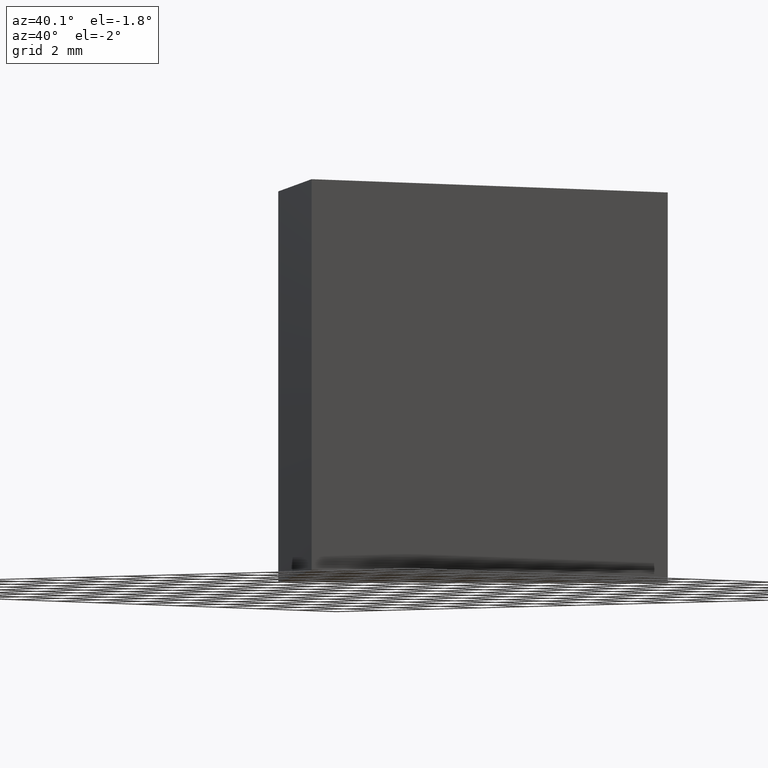
[diagram: clean part render]
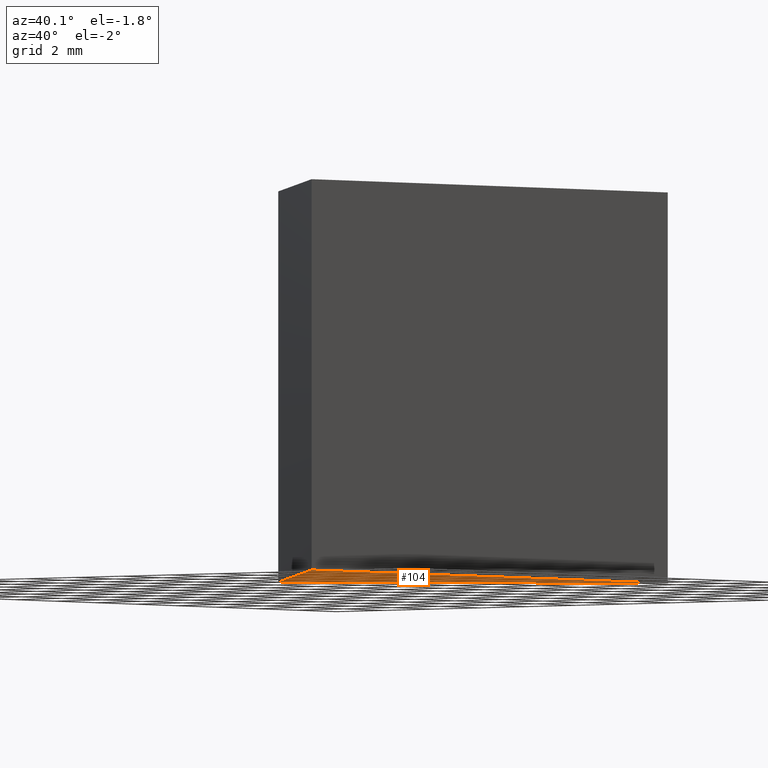
[diagram: same view with one face highlighted and labeled with its STEP entity id]
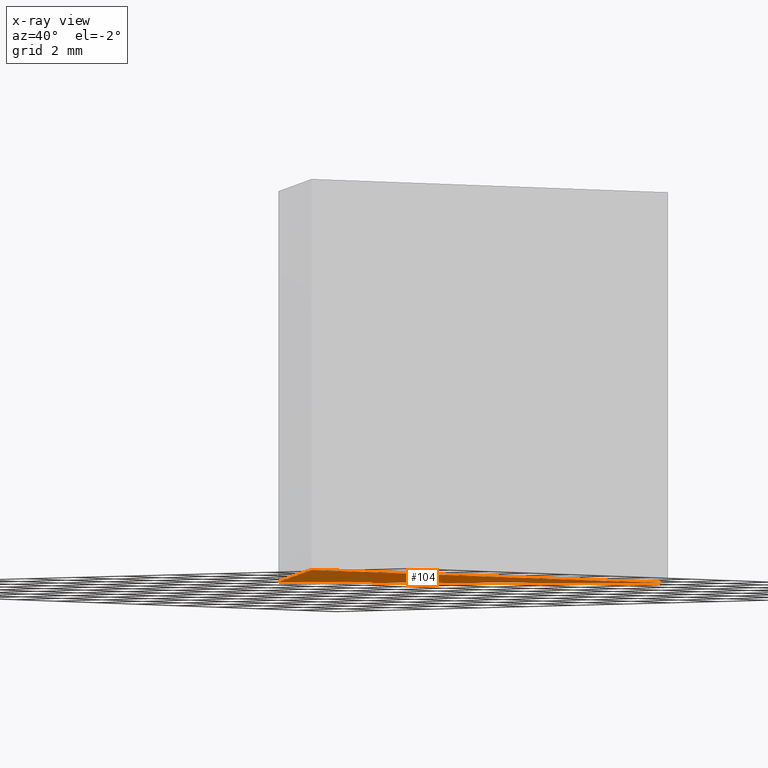
[diagram: x-ray of the same camera — body ghosted, the highlighted face saturated]
A machine part, auxiliary view. The second image highlights one B-rep face of the part: STEP entity #104.
The next image is the same camera in x-ray: the body ghosted, the highlighted face saturated — about 0% of this face is hidden behind the body in this view.
In plain terms, the highlighted planar face has unit normal (-0, 0, 1).
Its self-contained STEP definition (entity closure, byte-faithful):
#1 = CARTESIAN_POINT ( 'NONE',  ( 138.6916748814873000, 34.43923138208515400, 0.0000000000000000000 ) ) ;
#9 = ORIENTED_EDGE ( 'NONE', *, *, #32, .F. ) ;
#11 = LINE ( 'NONE', #109, #169 ) ;
#24 = EDGE_CURVE ( 'NONE', #43, #167, #152, .T. ) ;
#32 = EDGE_CURVE ( 'NONE', #87, #43, #11, .T. ) ;
#33 = FACE_OUTER_BOUND ( 'NONE', #91, .T. ) ;
#41 = LINE ( 'NONE', #67, #142 ) ;
#43 = VERTEX_POINT ( 'NONE', #56 ) ;
#50 = ORIENTED_EDGE ( 'NONE', *, *, #24, .F. ) ;
#54 = DIRECTION ( 'NONE',  ( -0.7071067811865481300, -0.7071067811865470200, -0.0000000000000000000 ) ) ;
#56 = CARTESIAN_POINT ( 'NONE',  ( 147.5305096463191600, 43.27806614691699800, 0.0000000000000000000 ) ) ;
#67 = CARTESIAN_POINT ( 'NONE',  ( 138.6916748814873000, 34.43923138208515400, 0.0000000000000000000 ) ) ;
#70 = CARTESIAN_POINT ( 'NONE',  ( 138.6916748814873000, 34.43923138208515400, 0.0000000000000000000 ) ) ;
#72 = EDGE_CURVE ( 'NONE', #167, #87, #41, .T. ) ;
#74 = DIRECTION ( 'NONE',  ( 1.000000000000000000, 0.0000000000000000000, 0.0000000000000000000 ) ) ;
#86 = ORIENTED_EDGE ( 'NONE', *, *, #72, .F. ) ;
#87 = VERTEX_POINT ( 'NONE', #130 ) ;
#91 = EDGE_LOOP ( 'NONE', ( #86, #50, #9 ) ) ;
#104 = ADVANCED_FACE ( 'NONE', ( #33 ), #162, .F. ) ;
#105 = AXIS2_PLACEMENT_3D ( 'NONE', #149, #151, #74 ) ;
#109 = CARTESIAN_POINT ( 'NONE',  ( 147.5305096463191300, 25.60039661725330600, 0.0000000000000000000 ) ) ;
#130 = CARTESIAN_POINT ( 'NONE',  ( 147.5305096463191300, 25.60039661725330600, 0.0000000000000000000 ) ) ;
#142 = VECTOR ( 'NONE', #143, 1000.000000000000100 ) ;
#143 = DIRECTION ( 'NONE',  ( 0.7071067811865465700, -0.7071067811865484600, 0.0000000000000000000 ) ) ;
#144 = VECTOR ( 'NONE', #54, 1000.000000000000000 ) ;
#149 = CARTESIAN_POINT ( 'NONE',  ( 0.0000000000000000000, 0.0000000000000000000, 0.0000000000000000000 ) ) ;
#151 = DIRECTION ( 'NONE',  ( -0.0000000000000000000, 0.0000000000000000000, 1.000000000000000000 ) ) ;
#152 = LINE ( 'NONE', #70, #144 ) ;
#162 = PLANE ( 'NONE',  #105 ) ;
#167 = VERTEX_POINT ( 'NONE', #1 ) ;
#168 = DIRECTION ( 'NONE',  ( 1.570092458683774700E-015, 1.000000000000000000, 0.0000000000000000000 ) ) ;
#169 = VECTOR ( 'NONE', #168, 1000.000000000000000 ) ;